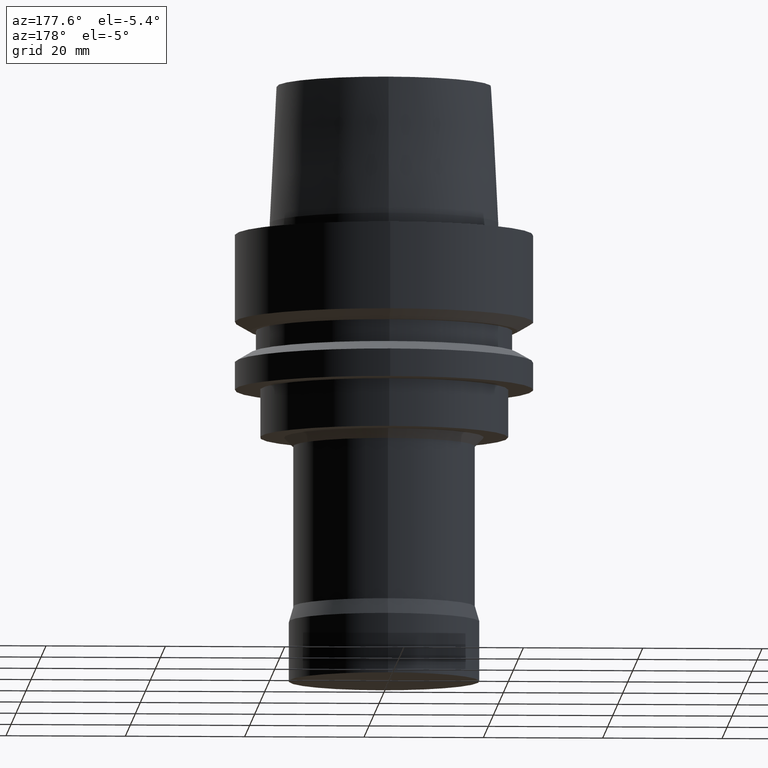
[diagram: clean part render]
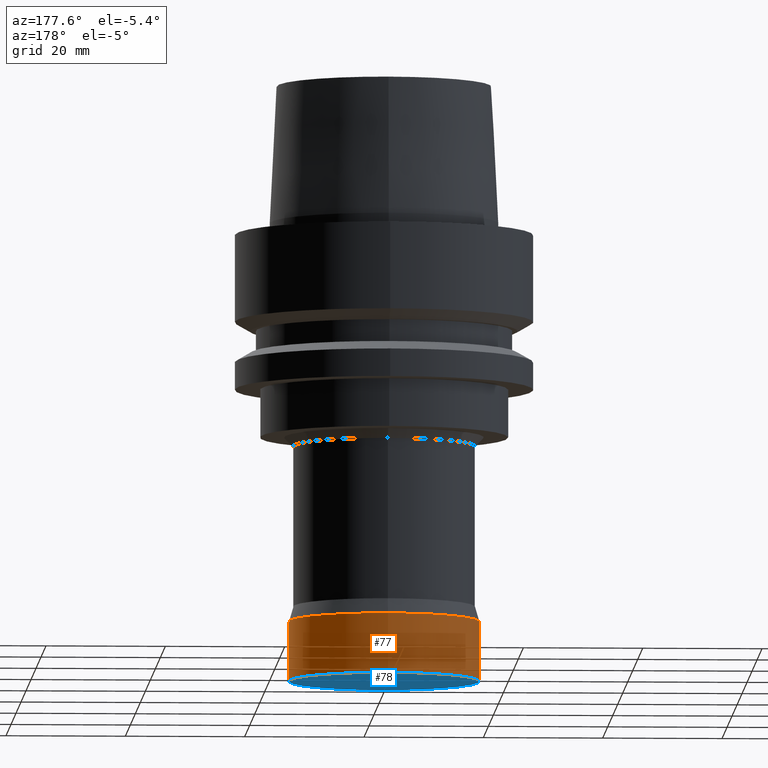
[diagram: same view with the hole feature highlighted: cylindrical wall and planar end face, labeled with their STEP entity ids]
A machine part, auxiliary view. The highlighted faces form one hole feature of diameter 32 mm: the cylindrical wall (entity #77, orange) and its adjacent planar end face (entity #78, blue) — they share a circular edge in the B-rep.
Wall:
#77=ADVANCED_FACE('',(#101,#102),#103,.T.);
#101=FACE_BOUND('',#156,.T.);
#102=FACE_BOUND('',#157,.T.);
#103=CYLINDRICAL_SURFACE('',#158,16.0);
#156=EDGE_LOOP('',(#215));
#157=EDGE_LOOP('',(#216));
#158=AXIS2_PLACEMENT_3D('',#217,#218,#219);
#215=ORIENTED_EDGE('',*,*,#301,.F.);
#216=ORIENTED_EDGE('',*,*,#300,.T.);
#217=CARTESIAN_POINT('',(4.28626379701574E-015,8.57252759403147E-015,-70.0));
#218=DIRECTION('',(-6.12323399573677E-017,-1.22464679914735E-016,1.0));
#219=DIRECTION('',(-1.23259516440783E-032,1.0,1.22464679914735E-016));
#300=EDGE_CURVE('',#320,#320,#321,.T.);
#301=EDGE_CURVE('',#322,#322,#323,.T.);
#320=VERTEX_POINT('',#356);
#321=CIRCLE('',#357,16.0);
#322=VERTEX_POINT('',#358);
#323=CIRCLE('',#359,16.0);
#356=CARTESIAN_POINT('',(3.9801020972289E-015,16.0,-65.0));
#357=AXIS2_PLACEMENT_3D('',#394,#395,#396);
#358=CARTESIAN_POINT('',(4.59242549680257E-015,16.0,-75.0));
#359=AXIS2_PLACEMENT_3D('',#397,#398,#399);
#394=CARTESIAN_POINT('',(3.9801020972289E-015,7.96020419445779E-015,-65.0));
#395=DIRECTION('',(6.12323399573677E-017,1.22464679914735E-016,-1.0));
#396=DIRECTION('',(-1.23259516440783E-032,1.0,1.22464679914735E-016));
#397=CARTESIAN_POINT('',(4.59242549680257E-015,9.18485099360515E-015,-75.0));
#398=DIRECTION('',(6.12323399573677E-017,1.22464679914735E-016,-1.0));
#399=DIRECTION('',(-1.23259516440783E-032,1.0,1.22464679914735E-016));
End face:
#78=ADVANCED_FACE('',(#104),#105,.T.);
#104=FACE_OUTER_BOUND('',#159,.T.);
#105=PLANE('',#160);
#159=EDGE_LOOP('',(#220));
#160=AXIS2_PLACEMENT_3D('',#221,#222,#223);
#220=ORIENTED_EDGE('',*,*,#301,.T.);
#221=CARTESIAN_POINT('',(4.59242549680257E-015,8.00000000000001,-75.0));
#222=DIRECTION('',(6.12323399573677E-017,1.22464679914735E-016,-1.0));
#223=DIRECTION('',(-1.23259516440783E-032,1.0,1.22464679914735E-016));
#301=EDGE_CURVE('',#322,#322,#323,.T.);
#322=VERTEX_POINT('',#358);
#323=CIRCLE('',#359,16.0);
#358=CARTESIAN_POINT('',(4.59242549680257E-015,16.0,-75.0));
#359=AXIS2_PLACEMENT_3D('',#397,#398,#399);
#397=CARTESIAN_POINT('',(4.59242549680257E-015,9.18485099360515E-015,-75.0));
#398=DIRECTION('',(6.12323399573677E-017,1.22464679914735E-016,-1.0));
#399=DIRECTION('',(-1.23259516440783E-032,1.0,1.22464679914735E-016));